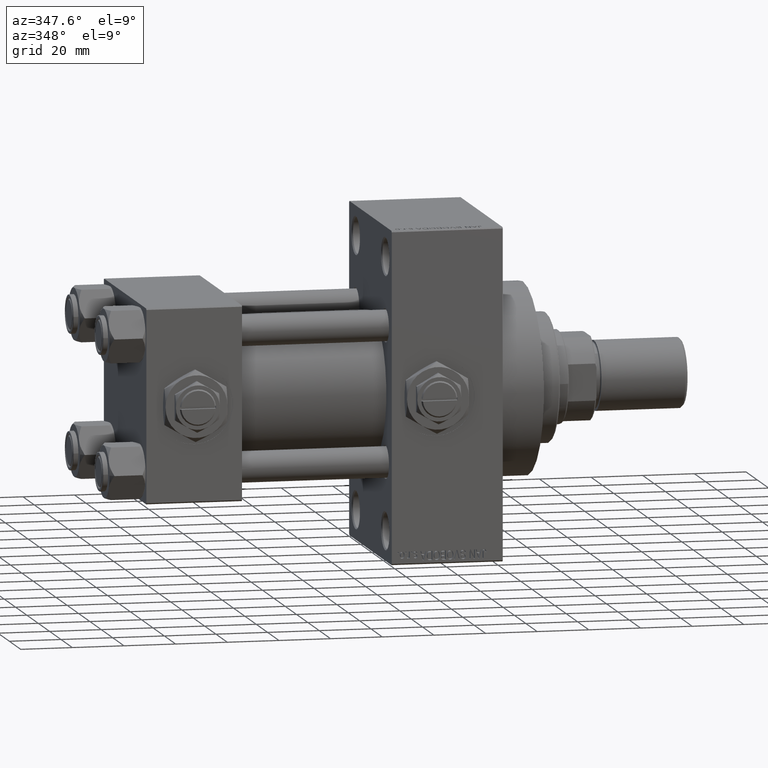
[diagram: clean part render]
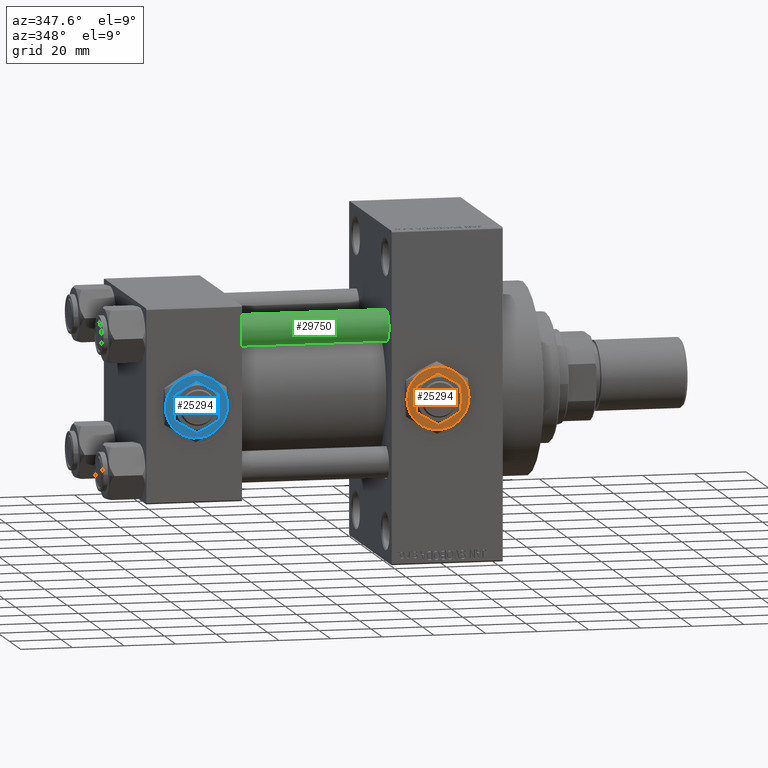
[diagram: same view with three faces highlighted in distinct colors, each labeled with its STEP entity id]
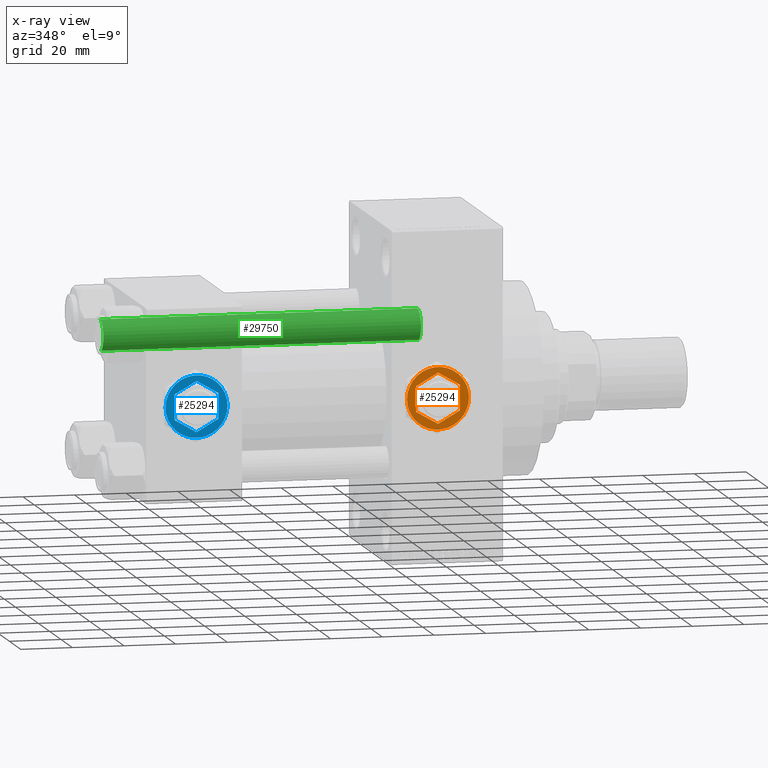
[diagram: x-ray of the same camera — body ghosted, the three highlighted faces saturated]
A machine part, auxiliary view with three faces highlighted in distinct colors.
The next image is the same camera in x-ray (body ghosted, the three faces saturated) — at least one of them is partly hidden behind the body in this view.
Their STEP definitions:

[orange] entity #25294 — the highlighted planar face has unit normal (0, -1, -0).
#263 = DIRECTION ( 'NONE',  ( 0.000000000000000000, 0.000000000000000000, 1.000000000000000000 ) ) ;
#375 = DIRECTION ( 'NONE',  ( 0.000000000000000000, 0.000000000000000000, 1.000000000000000000 ) ) ;
#433 = DIRECTION ( 'NONE',  ( 1.000000000000000000, 0.000000000000000000, 0.000000000000000000 ) ) ;
#727 = EDGE_CURVE ( 'NONE', #18066, #23084, #46748, .T. ) ;
#1108 = ORIENTED_EDGE ( 'NONE', *, *, #44816, .T. ) ;
#1327 = AXIS2_PLACEMENT_3D ( 'NONE', #8346, #16905, #31987 ) ;
#1408 = EDGE_CURVE ( 'NONE', #35976, #48328, #49257, .T. ) ;
#1489 = CIRCLE ( 'NONE', #38439, 12.00000000000000178 ) ;
#2177 = LINE ( 'NONE', #17564, #43146 ) ;
#2701 = DIRECTION ( 'NONE',  ( 1.000000000000000000, 0.000000000000000000, 0.000000000000000000 ) ) ;
#3745 = VECTOR ( 'NONE', #25004, 1000.000000000000114 ) ;
#3913 = DIRECTION ( 'NONE',  ( 1.000000000000000000, 0.000000000000000000, 0.000000000000000000 ) ) ;
#4411 = CARTESIAN_POINT ( 'NONE',  ( 0.000000000000000000, 0.000000000000000000, 4.299999999999999822 ) ) ;
#5995 = EDGE_CURVE ( 'NONE', #33577, #19280, #46263, .T. ) ;
#6377 = CARTESIAN_POINT ( 'NONE',  ( 0.000000000000000000, 0.000000000000000000, 4.299999999999999822 ) ) ;
#7759 = CARTESIAN_POINT ( 'NONE',  ( -8.500000000000000000, 4.907477288111818048, 4.299999999999999822 ) ) ;
#7820 = FACE_OUTER_BOUND ( 'NONE', #32639, .T. ) ;
#7909 = ORIENTED_EDGE ( 'NONE', *, *, #20638, .F. ) ;
#7954 = VERTEX_POINT ( 'NONE', #22658 ) ;
#8230 = AXIS2_PLACEMENT_3D ( 'NONE', #38165, #42933, #433 ) ;
#8282 = CARTESIAN_POINT ( 'NONE',  ( -8.500000000000000000, -4.907477288111819824, 4.299999999999999822 ) ) ;
#8346 = CARTESIAN_POINT ( 'NONE',  ( 0.000000000000000000, 0.000000000000000000, 4.299999999999999822 ) ) ;
#8919 = ORIENTED_EDGE ( 'NONE', *, *, #37292, .T. ) ;
#9236 = AXIS2_PLACEMENT_3D ( 'NONE', #42492, #34721, #16354 ) ;
#10302 = CIRCLE ( 'NONE', #18350, 12.00000000000000178 ) ;
#10513 = CARTESIAN_POINT ( 'NONE',  ( 0.000000000000000000, 0.000000000000000000, 4.299999999999999822 ) ) ;
#10661 = AXIS2_PLACEMENT_3D ( 'NONE', #30714, #263, #46293 ) ;
#11196 = EDGE_CURVE ( 'NONE', #13679, #28956, #30924, .T. ) ;
#11275 = CARTESIAN_POINT ( 'NONE',  ( -12.00000000000000178, 0.000000000000000000, 4.299999999999999822 ) ) ;
#11606 = FACE_BOUND ( 'NONE', #39674, .T. ) ;
#11726 = ORIENTED_EDGE ( 'NONE', *, *, #24367, .F. ) ;
#13164 = ORIENTED_EDGE ( 'NONE', *, *, #727, .T. ) ;
#13679 = VERTEX_POINT ( 'NONE', #29364 ) ;
#14827 = DIRECTION ( 'NONE',  ( -0.8660254037844387076, 0.4999999999999998890, 0.000000000000000000 ) ) ;
#15398 = ORIENTED_EDGE ( 'NONE', *, *, #1408, .F. ) ;
#15531 = VECTOR ( 'NONE', #30685, 1000.000000000000000 ) ;
#15772 = CARTESIAN_POINT ( 'NONE',  ( 0.000000000000000000, 9.814954576223637872, 4.299999999999999822 ) ) ;
#15860 = CARTESIAN_POINT ( 'NONE',  ( -8.500000000000000000, 4.907477288111818048, 4.299999999999999822 ) ) ;
#16354 = DIRECTION ( 'NONE',  ( 1.000000000000000000, 0.000000000000000000, 0.000000000000000000 ) ) ;
#16905 = DIRECTION ( 'NONE',  ( 0.000000000000000000, 0.000000000000000000, 1.000000000000000000 ) ) ;
#17564 = CARTESIAN_POINT ( 'NONE',  ( -2.644623992720612091E-15, -9.814954576223637872, 4.299999999999999822 ) ) ;
#18066 = VERTEX_POINT ( 'NONE', #42031 ) ;
#18350 = AXIS2_PLACEMENT_3D ( 'NONE', #6377, #21722, #29512 ) ;
#19280 = VERTEX_POINT ( 'NONE', #8282 ) ;
#19898 = EDGE_CURVE ( 'NONE', #32083, #35976, #45162, .T. ) ;
#20638 = EDGE_CURVE ( 'NONE', #7954, #32083, #2177, .T. ) ;
#21722 = DIRECTION ( 'NONE',  ( 0.000000000000000000, 0.000000000000000000, 1.000000000000000000 ) ) ;
#21835 = DIRECTION ( 'NONE',  ( 0.000000000000000000, 0.000000000000000000, 1.000000000000000000 ) ) ;
#22658 = CARTESIAN_POINT ( 'NONE',  ( -2.644623992720612091E-15, -9.814954576223637872, 4.299999999999999822 ) ) ;
#23084 = VERTEX_POINT ( 'NONE', #25021 ) ;
#23310 = VERTEX_POINT ( 'NONE', #32945 ) ;
#23472 = CARTESIAN_POINT ( 'NONE',  ( 8.500000000000000000, -4.907477288111819824, 4.299999999999999822 ) ) ;
#23705 = EDGE_CURVE ( 'NONE', #23310, #24199, #1489, .T. ) ;
#24199 = VERTEX_POINT ( 'NONE', #32515 ) ;
#24271 = VECTOR ( 'NONE', #38235, 1000.000000000000227 ) ;
#24367 = EDGE_CURVE ( 'NONE', #48328, #33577, #45789, .T. ) ;
#25004 = DIRECTION ( 'NONE',  ( 0.8660254037844385966, -0.5000000000000001110, 0.000000000000000000 ) ) ;
#25021 = CARTESIAN_POINT ( 'NONE',  ( 5.999999999999998224, -10.39230484541326760, 4.299999999999999822 ) ) ;
#25294 = ADVANCED_FACE ( 'NONE', ( #7820, #11606 ), #34743, .T. ) ;
#25587 = CARTESIAN_POINT ( 'NONE',  ( 8.500000000000000000, -4.907477288111819824, 4.299999999999999822 ) ) ;
#25768 = ORIENTED_EDGE ( 'NONE', *, *, #19898, .F. ) ;
#26234 = CIRCLE ( 'NONE', #1327, 12.00000000000000178 ) ;
#28956 = VERTEX_POINT ( 'NONE', #11275 ) ;
#29114 = VECTOR ( 'NONE', #14827, 1000.000000000000114 ) ;
#29364 = CARTESIAN_POINT ( 'NONE',  ( -6.000000000000001776, 10.39230484541326405, 4.299999999999999822 ) ) ;
#29512 = DIRECTION ( 'NONE',  ( 1.000000000000000000, 0.000000000000000000, 0.000000000000000000 ) ) ;
#29760 = LINE ( 'NONE', #44594, #3745 ) ;
#30256 = CIRCLE ( 'NONE', #38245, 12.00000000000000178 ) ;
#30685 = DIRECTION ( 'NONE',  ( 0.000000000000000000, -1.000000000000000000, 0.000000000000000000 ) ) ;
#30714 = CARTESIAN_POINT ( 'NONE',  ( 0.000000000000000000, 0.000000000000000000, 4.299999999999999822 ) ) ;
#30826 = ORIENTED_EDGE ( 'NONE', *, *, #41309, .F. ) ;
#30924 = CIRCLE ( 'NONE', #9236, 12.00000000000000178 ) ;
#31755 = ORIENTED_EDGE ( 'NONE', *, *, #41557, .T. ) ;
#31987 = DIRECTION ( 'NONE',  ( 1.000000000000000000, 0.000000000000000000, 0.000000000000000000 ) ) ;
#32083 = VERTEX_POINT ( 'NONE', #23472 ) ;
#32096 = ORIENTED_EDGE ( 'NONE', *, *, #5995, .F. ) ;
#32515 = CARTESIAN_POINT ( 'NONE',  ( 6.000000000000000888, 10.39230484541326582, 4.299999999999999822 ) ) ;
#32639 = EDGE_LOOP ( 'NONE', ( #8919, #43955, #31755, #39376, #1108, #13164 ) ) ;
#32893 = DIRECTION ( 'NONE',  ( 0.8660254037844388186, 0.4999999999999997224, 0.000000000000000000 ) ) ;
#32945 = CARTESIAN_POINT ( 'NONE',  ( 11.99999999999999645, 3.004629197474318063E-15, 4.299999999999999822 ) ) ;
#33577 = VERTEX_POINT ( 'NONE', #7759 ) ;
#33612 = DIRECTION ( 'NONE',  ( -3.534857879381550604E-16, 1.000000000000000000, 0.000000000000000000 ) ) ;
#33989 = CARTESIAN_POINT ( 'NONE',  ( 0.000000000000000000, 9.814954576223637872, 4.299999999999999822 ) ) ;
#34721 = DIRECTION ( 'NONE',  ( 0.000000000000000000, 0.000000000000000000, 1.000000000000000000 ) ) ;
#34743 = PLANE ( 'NONE',  #10661 ) ;
#35976 = VERTEX_POINT ( 'NONE', #49479 ) ;
#37292 = EDGE_CURVE ( 'NONE', #23084, #23310, #30256, .T. ) ;
#38165 = CARTESIAN_POINT ( 'NONE',  ( 0.000000000000000000, 0.000000000000000000, 4.299999999999999822 ) ) ;
#38235 = DIRECTION ( 'NONE',  ( -0.8660254037844385966, -0.5000000000000000000, 0.000000000000000000 ) ) ;
#38245 = AXIS2_PLACEMENT_3D ( 'NONE', #10513, #21835, #2701 ) ;
#38439 = AXIS2_PLACEMENT_3D ( 'NONE', #4411, #375, #3913 ) ;
#39376 = ORIENTED_EDGE ( 'NONE', *, *, #11196, .T. ) ;
#39674 = EDGE_LOOP ( 'NONE', ( #11726, #15398, #25768, #7909, #30826, #32096 ) ) ;
#41309 = EDGE_CURVE ( 'NONE', #19280, #7954, #29760, .T. ) ;
#41557 = EDGE_CURVE ( 'NONE', #24199, #13679, #26234, .T. ) ;
#42031 = CARTESIAN_POINT ( 'NONE',  ( -6.000000000000000000, -10.39230484541326582, 4.299999999999999822 ) ) ;
#42347 = VECTOR ( 'NONE', #33612, 1000.000000000000000 ) ;
#42492 = CARTESIAN_POINT ( 'NONE',  ( 0.000000000000000000, 0.000000000000000000, 4.299999999999999822 ) ) ;
#42933 = DIRECTION ( 'NONE',  ( 0.000000000000000000, 0.000000000000000000, 1.000000000000000000 ) ) ;
#43146 = VECTOR ( 'NONE', #32893, 1000.000000000000114 ) ;
#43955 = ORIENTED_EDGE ( 'NONE', *, *, #23705, .T. ) ;
#44594 = CARTESIAN_POINT ( 'NONE',  ( -8.500000000000000000, -4.907477288111819824, 4.299999999999999822 ) ) ;
#44816 = EDGE_CURVE ( 'NONE', #28956, #18066, #10302, .T. ) ;
#45162 = LINE ( 'NONE', #25587, #42347 ) ;
#45484 = CARTESIAN_POINT ( 'NONE',  ( 8.499999999999996447, 4.907477288111821601, 4.299999999999999822 ) ) ;
#45789 = LINE ( 'NONE', #33989, #24271 ) ;
#46263 = LINE ( 'NONE', #15860, #15531 ) ;
#46293 = DIRECTION ( 'NONE',  ( 1.000000000000000000, 0.000000000000000000, -0.000000000000000000 ) ) ;
#46748 = CIRCLE ( 'NONE', #8230, 12.00000000000000178 ) ;
#48328 = VERTEX_POINT ( 'NONE', #15772 ) ;
#49257 = LINE ( 'NONE', #45484, #29114 ) ;
#49479 = CARTESIAN_POINT ( 'NONE',  ( 8.499999999999996447, 4.907477288111821601, 4.299999999999999822 ) ) ;

[blue] entity #25294 — the highlighted planar face has unit normal (0, -1, -0).
#263 = DIRECTION ( 'NONE',  ( 0.000000000000000000, 0.000000000000000000, 1.000000000000000000 ) ) ;
#375 = DIRECTION ( 'NONE',  ( 0.000000000000000000, 0.000000000000000000, 1.000000000000000000 ) ) ;
#433 = DIRECTION ( 'NONE',  ( 1.000000000000000000, 0.000000000000000000, 0.000000000000000000 ) ) ;
#727 = EDGE_CURVE ( 'NONE', #18066, #23084, #46748, .T. ) ;
#1108 = ORIENTED_EDGE ( 'NONE', *, *, #44816, .T. ) ;
#1327 = AXIS2_PLACEMENT_3D ( 'NONE', #8346, #16905, #31987 ) ;
#1408 = EDGE_CURVE ( 'NONE', #35976, #48328, #49257, .T. ) ;
#1489 = CIRCLE ( 'NONE', #38439, 12.00000000000000178 ) ;
#2177 = LINE ( 'NONE', #17564, #43146 ) ;
#2701 = DIRECTION ( 'NONE',  ( 1.000000000000000000, 0.000000000000000000, 0.000000000000000000 ) ) ;
#3745 = VECTOR ( 'NONE', #25004, 1000.000000000000114 ) ;
#3913 = DIRECTION ( 'NONE',  ( 1.000000000000000000, 0.000000000000000000, 0.000000000000000000 ) ) ;
#4411 = CARTESIAN_POINT ( 'NONE',  ( 0.000000000000000000, 0.000000000000000000, 4.299999999999999822 ) ) ;
#5995 = EDGE_CURVE ( 'NONE', #33577, #19280, #46263, .T. ) ;
#6377 = CARTESIAN_POINT ( 'NONE',  ( 0.000000000000000000, 0.000000000000000000, 4.299999999999999822 ) ) ;
#7759 = CARTESIAN_POINT ( 'NONE',  ( -8.500000000000000000, 4.907477288111818048, 4.299999999999999822 ) ) ;
#7820 = FACE_OUTER_BOUND ( 'NONE', #32639, .T. ) ;
#7909 = ORIENTED_EDGE ( 'NONE', *, *, #20638, .F. ) ;
#7954 = VERTEX_POINT ( 'NONE', #22658 ) ;
#8230 = AXIS2_PLACEMENT_3D ( 'NONE', #38165, #42933, #433 ) ;
#8282 = CARTESIAN_POINT ( 'NONE',  ( -8.500000000000000000, -4.907477288111819824, 4.299999999999999822 ) ) ;
#8346 = CARTESIAN_POINT ( 'NONE',  ( 0.000000000000000000, 0.000000000000000000, 4.299999999999999822 ) ) ;
#8919 = ORIENTED_EDGE ( 'NONE', *, *, #37292, .T. ) ;
#9236 = AXIS2_PLACEMENT_3D ( 'NONE', #42492, #34721, #16354 ) ;
#10302 = CIRCLE ( 'NONE', #18350, 12.00000000000000178 ) ;
#10513 = CARTESIAN_POINT ( 'NONE',  ( 0.000000000000000000, 0.000000000000000000, 4.299999999999999822 ) ) ;
#10661 = AXIS2_PLACEMENT_3D ( 'NONE', #30714, #263, #46293 ) ;
#11196 = EDGE_CURVE ( 'NONE', #13679, #28956, #30924, .T. ) ;
#11275 = CARTESIAN_POINT ( 'NONE',  ( -12.00000000000000178, 0.000000000000000000, 4.299999999999999822 ) ) ;
#11606 = FACE_BOUND ( 'NONE', #39674, .T. ) ;
#11726 = ORIENTED_EDGE ( 'NONE', *, *, #24367, .F. ) ;
#13164 = ORIENTED_EDGE ( 'NONE', *, *, #727, .T. ) ;
#13679 = VERTEX_POINT ( 'NONE', #29364 ) ;
#14827 = DIRECTION ( 'NONE',  ( -0.8660254037844387076, 0.4999999999999998890, 0.000000000000000000 ) ) ;
#15398 = ORIENTED_EDGE ( 'NONE', *, *, #1408, .F. ) ;
#15531 = VECTOR ( 'NONE', #30685, 1000.000000000000000 ) ;
#15772 = CARTESIAN_POINT ( 'NONE',  ( 0.000000000000000000, 9.814954576223637872, 4.299999999999999822 ) ) ;
#15860 = CARTESIAN_POINT ( 'NONE',  ( -8.500000000000000000, 4.907477288111818048, 4.299999999999999822 ) ) ;
#16354 = DIRECTION ( 'NONE',  ( 1.000000000000000000, 0.000000000000000000, 0.000000000000000000 ) ) ;
#16905 = DIRECTION ( 'NONE',  ( 0.000000000000000000, 0.000000000000000000, 1.000000000000000000 ) ) ;
#17564 = CARTESIAN_POINT ( 'NONE',  ( -2.644623992720612091E-15, -9.814954576223637872, 4.299999999999999822 ) ) ;
#18066 = VERTEX_POINT ( 'NONE', #42031 ) ;
#18350 = AXIS2_PLACEMENT_3D ( 'NONE', #6377, #21722, #29512 ) ;
#19280 = VERTEX_POINT ( 'NONE', #8282 ) ;
#19898 = EDGE_CURVE ( 'NONE', #32083, #35976, #45162, .T. ) ;
#20638 = EDGE_CURVE ( 'NONE', #7954, #32083, #2177, .T. ) ;
#21722 = DIRECTION ( 'NONE',  ( 0.000000000000000000, 0.000000000000000000, 1.000000000000000000 ) ) ;
#21835 = DIRECTION ( 'NONE',  ( 0.000000000000000000, 0.000000000000000000, 1.000000000000000000 ) ) ;
#22658 = CARTESIAN_POINT ( 'NONE',  ( -2.644623992720612091E-15, -9.814954576223637872, 4.299999999999999822 ) ) ;
#23084 = VERTEX_POINT ( 'NONE', #25021 ) ;
#23310 = VERTEX_POINT ( 'NONE', #32945 ) ;
#23472 = CARTESIAN_POINT ( 'NONE',  ( 8.500000000000000000, -4.907477288111819824, 4.299999999999999822 ) ) ;
#23705 = EDGE_CURVE ( 'NONE', #23310, #24199, #1489, .T. ) ;
#24199 = VERTEX_POINT ( 'NONE', #32515 ) ;
#24271 = VECTOR ( 'NONE', #38235, 1000.000000000000227 ) ;
#24367 = EDGE_CURVE ( 'NONE', #48328, #33577, #45789, .T. ) ;
#25004 = DIRECTION ( 'NONE',  ( 0.8660254037844385966, -0.5000000000000001110, 0.000000000000000000 ) ) ;
#25021 = CARTESIAN_POINT ( 'NONE',  ( 5.999999999999998224, -10.39230484541326760, 4.299999999999999822 ) ) ;
#25294 = ADVANCED_FACE ( 'NONE', ( #7820, #11606 ), #34743, .T. ) ;
#25587 = CARTESIAN_POINT ( 'NONE',  ( 8.500000000000000000, -4.907477288111819824, 4.299999999999999822 ) ) ;
#25768 = ORIENTED_EDGE ( 'NONE', *, *, #19898, .F. ) ;
#26234 = CIRCLE ( 'NONE', #1327, 12.00000000000000178 ) ;
#28956 = VERTEX_POINT ( 'NONE', #11275 ) ;
#29114 = VECTOR ( 'NONE', #14827, 1000.000000000000114 ) ;
#29364 = CARTESIAN_POINT ( 'NONE',  ( -6.000000000000001776, 10.39230484541326405, 4.299999999999999822 ) ) ;
#29512 = DIRECTION ( 'NONE',  ( 1.000000000000000000, 0.000000000000000000, 0.000000000000000000 ) ) ;
#29760 = LINE ( 'NONE', #44594, #3745 ) ;
#30256 = CIRCLE ( 'NONE', #38245, 12.00000000000000178 ) ;
#30685 = DIRECTION ( 'NONE',  ( 0.000000000000000000, -1.000000000000000000, 0.000000000000000000 ) ) ;
#30714 = CARTESIAN_POINT ( 'NONE',  ( 0.000000000000000000, 0.000000000000000000, 4.299999999999999822 ) ) ;
#30826 = ORIENTED_EDGE ( 'NONE', *, *, #41309, .F. ) ;
#30924 = CIRCLE ( 'NONE', #9236, 12.00000000000000178 ) ;
#31755 = ORIENTED_EDGE ( 'NONE', *, *, #41557, .T. ) ;
#31987 = DIRECTION ( 'NONE',  ( 1.000000000000000000, 0.000000000000000000, 0.000000000000000000 ) ) ;
#32083 = VERTEX_POINT ( 'NONE', #23472 ) ;
#32096 = ORIENTED_EDGE ( 'NONE', *, *, #5995, .F. ) ;
#32515 = CARTESIAN_POINT ( 'NONE',  ( 6.000000000000000888, 10.39230484541326582, 4.299999999999999822 ) ) ;
#32639 = EDGE_LOOP ( 'NONE', ( #8919, #43955, #31755, #39376, #1108, #13164 ) ) ;
#32893 = DIRECTION ( 'NONE',  ( 0.8660254037844388186, 0.4999999999999997224, 0.000000000000000000 ) ) ;
#32945 = CARTESIAN_POINT ( 'NONE',  ( 11.99999999999999645, 3.004629197474318063E-15, 4.299999999999999822 ) ) ;
#33577 = VERTEX_POINT ( 'NONE', #7759 ) ;
#33612 = DIRECTION ( 'NONE',  ( -3.534857879381550604E-16, 1.000000000000000000, 0.000000000000000000 ) ) ;
#33989 = CARTESIAN_POINT ( 'NONE',  ( 0.000000000000000000, 9.814954576223637872, 4.299999999999999822 ) ) ;
#34721 = DIRECTION ( 'NONE',  ( 0.000000000000000000, 0.000000000000000000, 1.000000000000000000 ) ) ;
#34743 = PLANE ( 'NONE',  #10661 ) ;
#35976 = VERTEX_POINT ( 'NONE', #49479 ) ;
#37292 = EDGE_CURVE ( 'NONE', #23084, #23310, #30256, .T. ) ;
#38165 = CARTESIAN_POINT ( 'NONE',  ( 0.000000000000000000, 0.000000000000000000, 4.299999999999999822 ) ) ;
#38235 = DIRECTION ( 'NONE',  ( -0.8660254037844385966, -0.5000000000000000000, 0.000000000000000000 ) ) ;
#38245 = AXIS2_PLACEMENT_3D ( 'NONE', #10513, #21835, #2701 ) ;
#38439 = AXIS2_PLACEMENT_3D ( 'NONE', #4411, #375, #3913 ) ;
#39376 = ORIENTED_EDGE ( 'NONE', *, *, #11196, .T. ) ;
#39674 = EDGE_LOOP ( 'NONE', ( #11726, #15398, #25768, #7909, #30826, #32096 ) ) ;
#41309 = EDGE_CURVE ( 'NONE', #19280, #7954, #29760, .T. ) ;
#41557 = EDGE_CURVE ( 'NONE', #24199, #13679, #26234, .T. ) ;
#42031 = CARTESIAN_POINT ( 'NONE',  ( -6.000000000000000000, -10.39230484541326582, 4.299999999999999822 ) ) ;
#42347 = VECTOR ( 'NONE', #33612, 1000.000000000000000 ) ;
#42492 = CARTESIAN_POINT ( 'NONE',  ( 0.000000000000000000, 0.000000000000000000, 4.299999999999999822 ) ) ;
#42933 = DIRECTION ( 'NONE',  ( 0.000000000000000000, 0.000000000000000000, 1.000000000000000000 ) ) ;
#43146 = VECTOR ( 'NONE', #32893, 1000.000000000000114 ) ;
#43955 = ORIENTED_EDGE ( 'NONE', *, *, #23705, .T. ) ;
#44594 = CARTESIAN_POINT ( 'NONE',  ( -8.500000000000000000, -4.907477288111819824, 4.299999999999999822 ) ) ;
#44816 = EDGE_CURVE ( 'NONE', #28956, #18066, #10302, .T. ) ;
#45162 = LINE ( 'NONE', #25587, #42347 ) ;
#45484 = CARTESIAN_POINT ( 'NONE',  ( 8.499999999999996447, 4.907477288111821601, 4.299999999999999822 ) ) ;
#45789 = LINE ( 'NONE', #33989, #24271 ) ;
#46263 = LINE ( 'NONE', #15860, #15531 ) ;
#46293 = DIRECTION ( 'NONE',  ( 1.000000000000000000, 0.000000000000000000, -0.000000000000000000 ) ) ;
#46748 = CIRCLE ( 'NONE', #8230, 12.00000000000000178 ) ;
#48328 = VERTEX_POINT ( 'NONE', #15772 ) ;
#49257 = LINE ( 'NONE', #45484, #29114 ) ;
#49479 = CARTESIAN_POINT ( 'NONE',  ( 8.499999999999996447, 4.907477288111821601, 4.299999999999999822 ) ) ;

[green] entity #29750 — the highlighted cylindrical surface (edge-blend (fillet) strip) has radius 6 mm, axis along (1, 0, 0).
#167 = DIRECTION ( 'NONE',  ( -0.000000000000000000, -0.000000000000000000, -1.000000000000000000 ) ) ;
#1742 = VERTEX_POINT ( 'NONE', #17568 ) ;
#3785 = DIRECTION ( 'NONE',  ( -0.000000000000000000, -0.000000000000000000, -1.000000000000000000 ) ) ;
#7417 = VERTEX_POINT ( 'NONE', #40460 ) ;
#8051 = VECTOR ( 'NONE', #167, 1000.000000000000000 ) ;
#8248 = VECTOR ( 'NONE', #14033, 1000.000000000000000 ) ;
#8638 = CARTESIAN_POINT ( 'NONE',  ( 0.000000000000000000, 0.000000000000000000, 0.4999999999999865663 ) ) ;
#9420 = ORIENTED_EDGE ( 'NONE', *, *, #14175, .T. ) ;
#10599 = CARTESIAN_POINT ( 'NONE',  ( 0.000000000000000000, 0.000000000000000000, 124.0000000000000000 ) ) ;
#10750 = EDGE_CURVE ( 'NONE', #15691, #13173, #42937, .T. ) ;
#11478 = CARTESIAN_POINT ( 'NONE',  ( 0.000000000000000000, 0.000000000000000000, 123.5000000000000426 ) ) ;
#12516 = ORIENTED_EDGE ( 'NONE', *, *, #46455, .T. ) ;
#13173 = VERTEX_POINT ( 'NONE', #26993 ) ;
#14033 = DIRECTION ( 'NONE',  ( -0.000000000000000000, -0.000000000000000000, -1.000000000000000000 ) ) ;
#14175 = EDGE_CURVE ( 'NONE', #7417, #1742, #45487, .T. ) ;
#14763 = EDGE_LOOP ( 'NONE', ( #48893, #12516, #9420, #31030 ) ) ;
#15374 = FACE_OUTER_BOUND ( 'NONE', #14763, .T. ) ;
#15544 = CARTESIAN_POINT ( 'NONE',  ( 6.000000000000000888, 7.347880794884120722E-16, 124.0000000000000000 ) ) ;
#15691 = VERTEX_POINT ( 'NONE', #43249 ) ;
#17568 = CARTESIAN_POINT ( 'NONE',  ( -6.000000000000000888, 0.000000000000000000, 0.4999999999999865663 ) ) ;
#19026 = DIRECTION ( 'NONE',  ( 1.000000000000000000, 0.000000000000000000, 0.000000000000000000 ) ) ;
#20029 = DIRECTION ( 'NONE',  ( 0.000000000000000000, 0.000000000000000000, -1.000000000000000000 ) ) ;
#23990 = DIRECTION ( 'NONE',  ( -0.000000000000000000, -0.000000000000000000, 1.000000000000000000 ) ) ;
#26993 = CARTESIAN_POINT ( 'NONE',  ( 6.000000000000000888, 7.347880794884120722E-16, 123.5000000000000426 ) ) ;
#29362 = CARTESIAN_POINT ( 'NONE',  ( -6.000000000000000888, 0.000000000000000000, 124.0000000000000000 ) ) ;
#29424 = AXIS2_PLACEMENT_3D ( 'NONE', #8638, #23990, #35553 ) ;
#29750 = ADVANCED_FACE ( 'NONE', ( #15374 ), #41518, .T. ) ;
#29935 = EDGE_CURVE ( 'NONE', #15691, #1742, #45175, .T. ) ;
#31030 = ORIENTED_EDGE ( 'NONE', *, *, #29935, .F. ) ;
#34406 = LINE ( 'NONE', #15544, #8051 ) ;
#35553 = DIRECTION ( 'NONE',  ( 1.000000000000000000, 0.000000000000000000, 0.000000000000000000 ) ) ;
#37336 = AXIS2_PLACEMENT_3D ( 'NONE', #11478, #20029, #19026 ) ;
#40460 = CARTESIAN_POINT ( 'NONE',  ( 6.000000000000000888, 7.347880794884120722E-16, 0.4999999999999865663 ) ) ;
#41270 = DIRECTION ( 'NONE',  ( -1.000000000000000000, 0.000000000000000000, 0.000000000000000000 ) ) ;
#41518 = CYLINDRICAL_SURFACE ( 'NONE', #48419, 6.000000000000000888 ) ;
#42937 = CIRCLE ( 'NONE', #37336, 6.000000000000000888 ) ;
#43249 = CARTESIAN_POINT ( 'NONE',  ( -6.000000000000000888, 0.000000000000000000, 123.5000000000000426 ) ) ;
#45175 = LINE ( 'NONE', #29362, #8248 ) ;
#45487 = CIRCLE ( 'NONE', #29424, 6.000000000000000888 ) ;
#46455 = EDGE_CURVE ( 'NONE', #13173, #7417, #34406, .T. ) ;
#48419 = AXIS2_PLACEMENT_3D ( 'NONE', #10599, #3785, #41270 ) ;
#48893 = ORIENTED_EDGE ( 'NONE', *, *, #10750, .T. ) ;